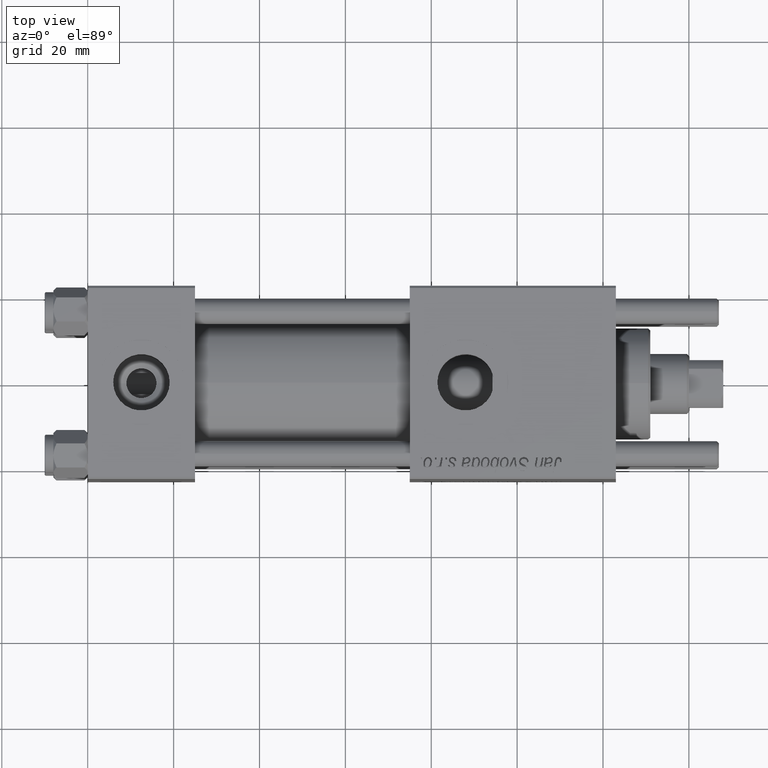
[diagram: clean part render]
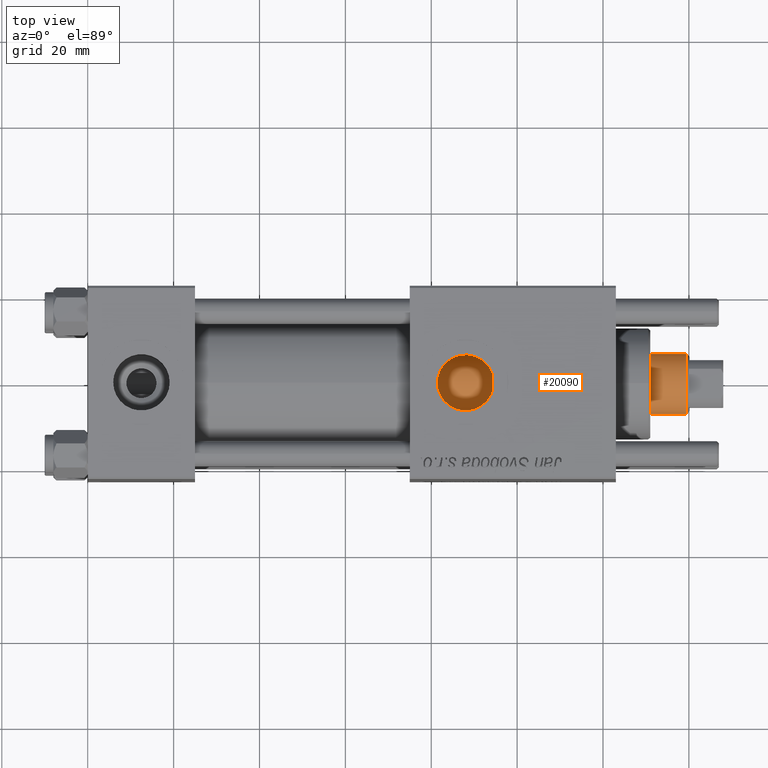
[diagram: same view with one face highlighted and labeled with its STEP entity id]
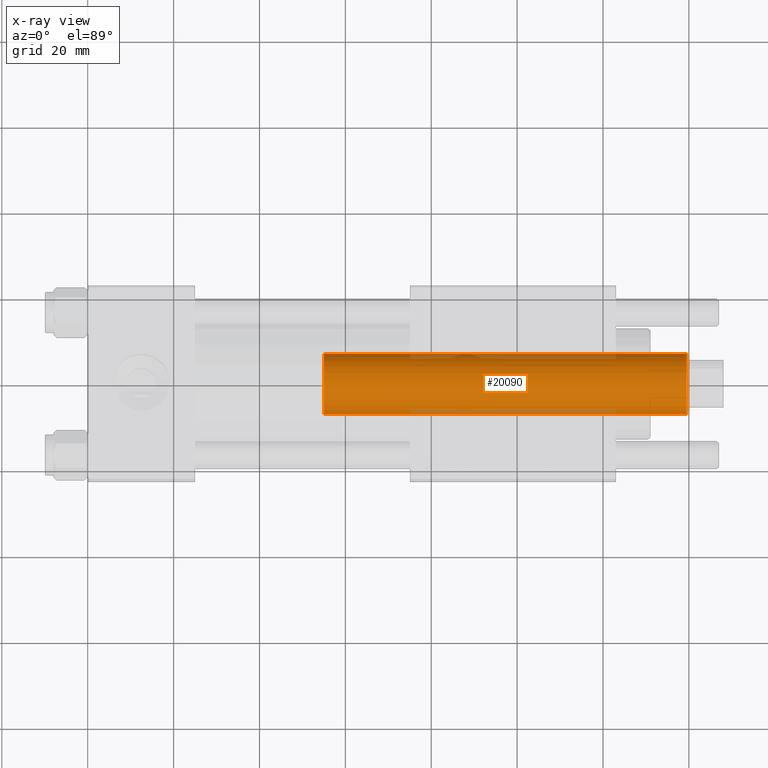
[diagram: x-ray of the same camera — body ghosted, the highlighted face saturated]
A machine part, top view. The second image highlights one B-rep face of the part: STEP entity #20090.
The next image is the same camera in x-ray: the body ghosted, the highlighted face saturated — about 10% of this face is hidden behind the body in this view.
In plain terms, the highlighted cylindrical surface (edge-blend (fillet) strip) has radius 7 mm, axis along (-1, 0, 0).
Its self-contained STEP definition (entity closure, byte-faithful):
#564 = EDGE_CURVE ( 'NONE', #43649, #19221, #31827, .T. ) ;
#1054 = EDGE_CURVE ( 'NONE', #19221, #16102, #40367, .T. ) ;
#2797 = ORIENTED_EDGE ( 'NONE', *, *, #8827, .T. ) ;
#4391 = CARTESIAN_POINT ( 'NONE',  ( 7.000000000000000000, 8.572527594031473190E-16, 30.00000000000000000 ) ) ;
#6167 = DIRECTION ( 'NONE',  ( -0.000000000000000000, -0.000000000000000000, -1.000000000000000000 ) ) ;
#7656 = DIRECTION ( 'NONE',  ( 1.000000000000000000, 0.000000000000000000, 0.000000000000000000 ) ) ;
#8024 = FACE_OUTER_BOUND ( 'NONE', #45823, .T. ) ;
#8827 = EDGE_CURVE ( 'NONE', #33620, #43649, #45044, .T. ) ;
#9642 = CARTESIAN_POINT ( 'NONE',  ( -7.000000000000000000, 0.000000000000000000, 115.0000000000000000 ) ) ;
#9869 = DIRECTION ( 'NONE',  ( 1.000000000000000000, 0.000000000000000000, 0.000000000000000000 ) ) ;
#11515 = DIRECTION ( 'NONE',  ( -1.000000000000000000, 0.000000000000000000, 0.000000000000000000 ) ) ;
#12272 = DIRECTION ( 'NONE',  ( 0.000000000000000000, 0.000000000000000000, -1.000000000000000000 ) ) ;
#13530 = VECTOR ( 'NONE', #31689, 1000.000000000000000 ) ;
#14998 = AXIS2_PLACEMENT_3D ( 'NONE', #24479, #37749, #11515 ) ;
#16022 = CARTESIAN_POINT ( 'NONE',  ( -7.000000000000000000, 0.000000000000000000, 114.4999999999999858 ) ) ;
#16102 = VERTEX_POINT ( 'NONE', #4391 ) ;
#17680 = ORIENTED_EDGE ( 'NONE', *, *, #1054, .T. ) ;
#19221 = VERTEX_POINT ( 'NONE', #23040 ) ;
#20090 = ADVANCED_FACE ( 'NONE', ( #8024 ), #33409, .T. ) ;
#23040 = CARTESIAN_POINT ( 'NONE',  ( -7.000000000000000000, 0.000000000000000000, 30.00000000000000000 ) ) ;
#23834 = AXIS2_PLACEMENT_3D ( 'NONE', #34171, #12272, #7656 ) ;
#24479 = CARTESIAN_POINT ( 'NONE',  ( 0.000000000000000000, 0.000000000000000000, 115.0000000000000000 ) ) ;
#26128 = ORIENTED_EDGE ( 'NONE', *, *, #53470, .F. ) ;
#26884 = DIRECTION ( 'NONE',  ( 0.000000000000000000, 0.000000000000000000, 1.000000000000000000 ) ) ;
#27171 = CARTESIAN_POINT ( 'NONE',  ( 0.000000000000000000, 0.000000000000000000, 30.00000000000000000 ) ) ;
#27571 = ORIENTED_EDGE ( 'NONE', *, *, #564, .T. ) ;
#31689 = DIRECTION ( 'NONE',  ( -0.000000000000000000, -0.000000000000000000, -1.000000000000000000 ) ) ;
#31827 = LINE ( 'NONE', #9642, #49516 ) ;
#33409 = CYLINDRICAL_SURFACE ( 'NONE', #14998, 7.000000000000000000 ) ;
#33620 = VERTEX_POINT ( 'NONE', #56491 ) ;
#34171 = CARTESIAN_POINT ( 'NONE',  ( 0.000000000000000000, 0.000000000000000000, 114.4999999999999858 ) ) ;
#36584 = LINE ( 'NONE', #54433, #13530 ) ;
#37749 = DIRECTION ( 'NONE',  ( -0.000000000000000000, -0.000000000000000000, -1.000000000000000000 ) ) ;
#40367 = CIRCLE ( 'NONE', #52312, 7.000000000000000000 ) ;
#43649 = VERTEX_POINT ( 'NONE', #16022 ) ;
#45044 = CIRCLE ( 'NONE', #23834, 7.000000000000000000 ) ;
#45823 = EDGE_LOOP ( 'NONE', ( #26128, #2797, #27571, #17680 ) ) ;
#49516 = VECTOR ( 'NONE', #6167, 1000.000000000000000 ) ;
#52312 = AXIS2_PLACEMENT_3D ( 'NONE', #27171, #26884, #9869 ) ;
#53470 = EDGE_CURVE ( 'NONE', #33620, #16102, #36584, .T. ) ;
#54433 = CARTESIAN_POINT ( 'NONE',  ( 7.000000000000000000, 8.572527594031473190E-16, 115.0000000000000000 ) ) ;
#56491 = CARTESIAN_POINT ( 'NONE',  ( 7.000000000000000000, 8.572527594031473190E-16, 114.4999999999999858 ) ) ;